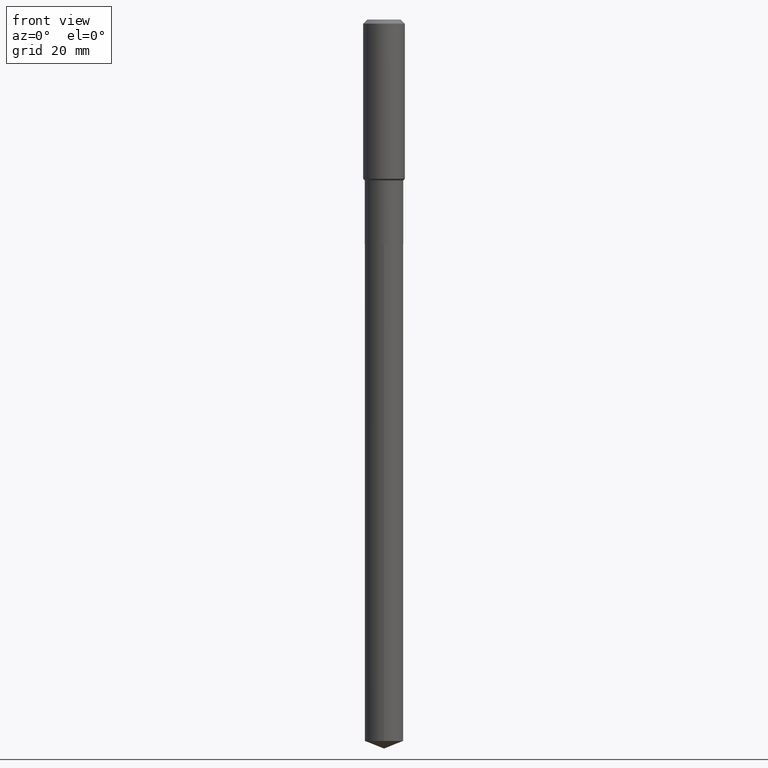
[diagram: clean part render]
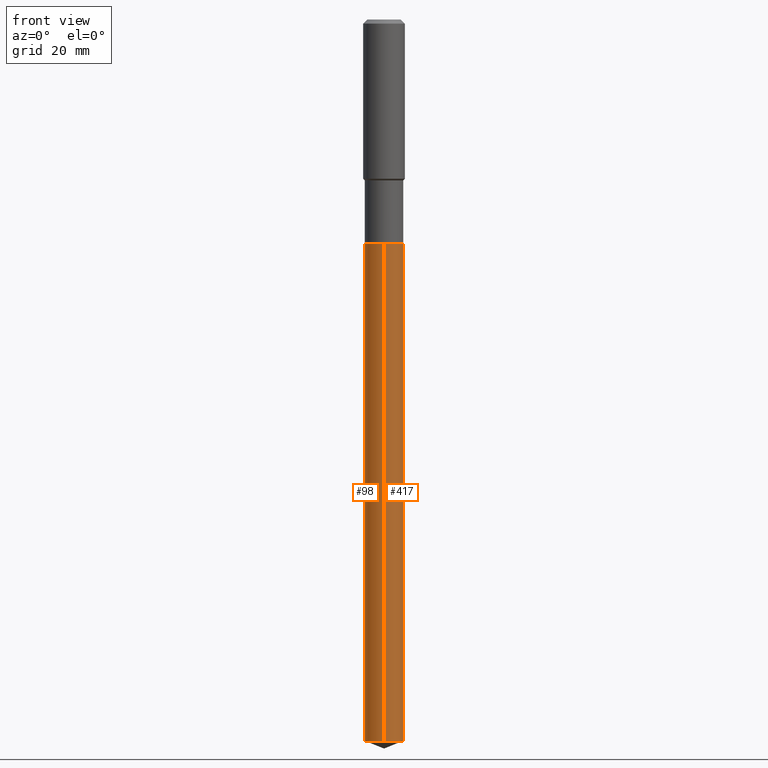
[diagram: same view with one multi-face feature highlighted, each face labeled with its STEP entity id]
A machine part, front view. The highlighted faces form ONE feature: a constant-radius fillet chain: 2 tangent blend faces with common blend radius 5.5562 mm. The faces share edges in the B-rep.
Their STEP definitions:
[1] entity #417 (Cylinder):
#10 = VECTOR ( 'NONE', #82, 39.37007874015748143 ) ;
#12 = CARTESIAN_POINT ( 'NONE',  ( 1.554312234475420316E-15, 0.2187499999999911182, -2.546300000000000452 ) ) ;
#20 = CARTESIAN_POINT ( 'NONE',  ( 1.554312234475281279E-15, 0.2187499999999911182, -2.546300000000000452 ) ) ;
#33 = DIRECTION ( 'NONE',  ( -2.445520389880296907E-29, 3.491407468055714377E-15, 1.000000000000000000 ) ) ;
#34 = EDGE_CURVE ( 'NONE', #442, #51, #177, .T. ) ;
#51 = VERTEX_POINT ( 'NONE', #373 ) ;
#79 = CIRCLE ( 'NONE', #375, 0.2187500000000000000 ) ;
#82 = DIRECTION ( 'NONE',  ( -2.445520389880296907E-29, 3.491407468055714377E-15, 1.000000000000000000 ) ) ;
#95 = ORIENTED_EDGE ( 'NONE', *, *, #34, .T. ) ;
#101 = DIRECTION ( 'NONE',  ( -2.445520389880296907E-29, 3.491407468055714377E-15, 1.000000000000000000 ) ) ;
#106 = EDGE_CURVE ( 'NONE', #51, #320, #301, .T. ) ;
#109 = CARTESIAN_POINT ( 'NONE',  ( 6.226897221189214281E-29, -8.890358933096301695E-15, -2.546300000000000008 ) ) ;
#126 = AXIS2_PLACEMENT_3D ( 'NONE', #365, #33, #489 ) ;
#157 = EDGE_CURVE ( 'NONE', #442, #196, #466, .T. ) ;
#161 = DIRECTION ( 'NONE',  ( -2.445520389880296907E-29, 3.491407468055714377E-15, 1.000000000000000000 ) ) ;
#177 = CIRCLE ( 'NONE', #126, 0.2187500000000000000 ) ;
#186 = ORIENTED_EDGE ( 'NONE', *, *, #106, .T. ) ;
#196 = VERTEX_POINT ( 'NONE', #234 ) ;
#211 = CYLINDRICAL_SURFACE ( 'NONE', #390, 0.2187500000000000000 ) ;
#234 = CARTESIAN_POINT ( 'NONE',  ( -1.527523085743808128E-15, -0.2187500000000088540, -2.546299999999999564 ) ) ;
#246 = CARTESIAN_POINT ( 'NONE',  ( -1.527523085743670472E-15, -0.2187500000000286160, -8.181832083459230631 ) ) ;
#248 = ORIENTED_EDGE ( 'NONE', *, *, #157, .F. ) ;
#251 = FACE_OUTER_BOUND ( 'NONE', #312, .T. ) ;
#283 = DIRECTION ( 'NONE',  ( -6.982962677686265133E-15, -1.000000000000000000, 2.497689594207326371E-15 ) ) ;
#287 = DIRECTION ( 'NONE',  ( -2.445520389880296907E-29, 3.491407468055714377E-15, 1.000000000000000000 ) ) ;
#301 = LINE ( 'NONE', #20, #343 ) ;
#312 = EDGE_LOOP ( 'NONE', ( #95, #186, #366, #248 ) ) ;
#318 = DIRECTION ( 'NONE',  ( -6.982962677686265133E-15, -1.000000000000000000, 2.497689594207326371E-15 ) ) ;
#320 = VERTEX_POINT ( 'NONE', #12 ) ;
#323 = CARTESIAN_POINT ( 'NONE',  ( 6.226897221189214281E-29, -8.890358933096301695E-15, -2.546300000000000008 ) ) ;
#343 = VECTOR ( 'NONE', #161, 39.37007874015748143 ) ;
#365 = CARTESIAN_POINT ( 'NONE',  ( 2.000870583911335525E-28, -2.856629773575344102E-14, -8.181832083459232408 ) ) ;
#366 = ORIENTED_EDGE ( 'NONE', *, *, #411, .F. ) ;
#373 = CARTESIAN_POINT ( 'NONE',  ( 1.554312234475419527E-15, 0.2187499999999714395, -8.181832083459232408 ) ) ;
#375 = AXIS2_PLACEMENT_3D ( 'NONE', #323, #287, #283 ) ;
#385 = CARTESIAN_POINT ( 'NONE',  ( -1.527523085743808128E-15, -0.2187500000000088540, -2.546299999999999564 ) ) ;
#390 = AXIS2_PLACEMENT_3D ( 'NONE', #109, #101, #318 ) ;
#411 = EDGE_CURVE ( 'NONE', #196, #320, #79, .T. ) ;
#417 = ADVANCED_FACE ( 'NONE', ( #251 ), #211, .T. ) ;
#442 = VERTEX_POINT ( 'NONE', #246 ) ;
#466 = LINE ( 'NONE', #385, #10 ) ;
#489 = DIRECTION ( 'NONE',  ( -6.982962677686265133E-15, -1.000000000000000000, 4.995379188414652742E-15 ) ) ;
[2] entity #98 (Cylinder):
#10 = VECTOR ( 'NONE', #82, 39.37007874015748143 ) ;
#12 = CARTESIAN_POINT ( 'NONE',  ( 1.554312234475420316E-15, 0.2187499999999911182, -2.546300000000000452 ) ) ;
#17 = ORIENTED_EDGE ( 'NONE', *, *, #157, .T. ) ;
#20 = CARTESIAN_POINT ( 'NONE',  ( 1.554312234475281279E-15, 0.2187499999999911182, -2.546300000000000452 ) ) ;
#25 = EDGE_CURVE ( 'NONE', #51, #442, #420, .T. ) ;
#44 = DIRECTION ( 'NONE',  ( -6.982962677686265133E-15, -1.000000000000000000, 2.497689594207326371E-15 ) ) ;
#51 = VERTEX_POINT ( 'NONE', #373 ) ;
#80 = DIRECTION ( 'NONE',  ( -2.445520389880296907E-29, 3.491407468055714377E-15, 1.000000000000000000 ) ) ;
#82 = DIRECTION ( 'NONE',  ( -2.445520389880296907E-29, 3.491407468055714377E-15, 1.000000000000000000 ) ) ;
#98 = ADVANCED_FACE ( 'NONE', ( #153 ), #457, .T. ) ;
#106 = EDGE_CURVE ( 'NONE', #51, #320, #301, .T. ) ;
#124 = CARTESIAN_POINT ( 'NONE',  ( 2.000870583911335525E-28, -2.856629773575344102E-14, -8.181832083459232408 ) ) ;
#133 = ORIENTED_EDGE ( 'NONE', *, *, #25, .T. ) ;
#150 = AXIS2_PLACEMENT_3D ( 'NONE', #158, #298, #44 ) ;
#153 = FACE_OUTER_BOUND ( 'NONE', #383, .T. ) ;
#157 = EDGE_CURVE ( 'NONE', #442, #196, #466, .T. ) ;
#158 = CARTESIAN_POINT ( 'NONE',  ( 6.226897221189214281E-29, -8.890358933096301695E-15, -2.546300000000000008 ) ) ;
#161 = DIRECTION ( 'NONE',  ( -2.445520389880296907E-29, 3.491407468055714377E-15, 1.000000000000000000 ) ) ;
#176 = DIRECTION ( 'NONE',  ( -6.982962677686265133E-15, -1.000000000000000000, 4.995379188414652742E-15 ) ) ;
#196 = VERTEX_POINT ( 'NONE', #234 ) ;
#220 = DIRECTION ( 'NONE',  ( -6.982962677686265133E-15, -1.000000000000000000, 2.497689594207326371E-15 ) ) ;
#234 = CARTESIAN_POINT ( 'NONE',  ( -1.527523085743808128E-15, -0.2187500000000088540, -2.546299999999999564 ) ) ;
#246 = CARTESIAN_POINT ( 'NONE',  ( -1.527523085743670472E-15, -0.2187500000000286160, -8.181832083459230631 ) ) ;
#271 = DIRECTION ( 'NONE',  ( -2.445520389880296907E-29, 3.491407468055714377E-15, 1.000000000000000000 ) ) ;
#286 = CIRCLE ( 'NONE', #410, 0.2187500000000000000 ) ;
#290 = ORIENTED_EDGE ( 'NONE', *, *, #106, .F. ) ;
#298 = DIRECTION ( 'NONE',  ( -2.445520389880296907E-29, 3.491407468055714377E-15, 1.000000000000000000 ) ) ;
#301 = LINE ( 'NONE', #20, #343 ) ;
#320 = VERTEX_POINT ( 'NONE', #12 ) ;
#343 = VECTOR ( 'NONE', #161, 39.37007874015748143 ) ;
#367 = AXIS2_PLACEMENT_3D ( 'NONE', #124, #271, #176 ) ;
#373 = CARTESIAN_POINT ( 'NONE',  ( 1.554312234475419527E-15, 0.2187499999999714395, -8.181832083459232408 ) ) ;
#383 = EDGE_LOOP ( 'NONE', ( #290, #133, #17, #435 ) ) ;
#385 = CARTESIAN_POINT ( 'NONE',  ( -1.527523085743808128E-15, -0.2187500000000088540, -2.546299999999999564 ) ) ;
#410 = AXIS2_PLACEMENT_3D ( 'NONE', #451, #80, #220 ) ;
#420 = CIRCLE ( 'NONE', #367, 0.2187500000000000000 ) ;
#435 = ORIENTED_EDGE ( 'NONE', *, *, #490, .F. ) ;
#442 = VERTEX_POINT ( 'NONE', #246 ) ;
#451 = CARTESIAN_POINT ( 'NONE',  ( 6.226897221189214281E-29, -8.890358933096301695E-15, -2.546300000000000008 ) ) ;
#457 = CYLINDRICAL_SURFACE ( 'NONE', #150, 0.2187500000000000000 ) ;
#466 = LINE ( 'NONE', #385, #10 ) ;
#490 = EDGE_CURVE ( 'NONE', #320, #196, #286, .T. ) ;